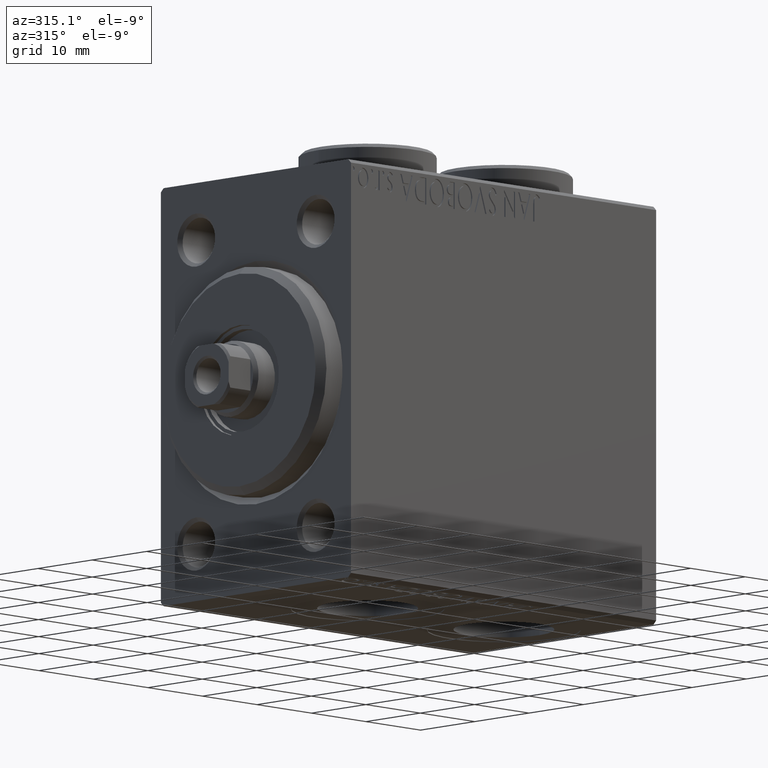
[diagram: clean part render]
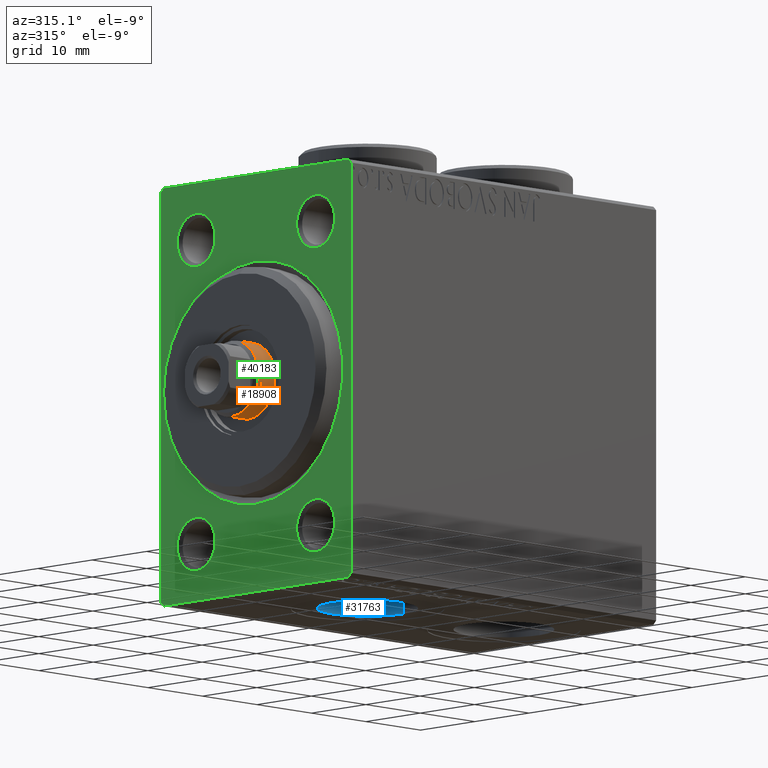
[diagram: same view with three faces highlighted in distinct colors, each labeled with its STEP entity id]
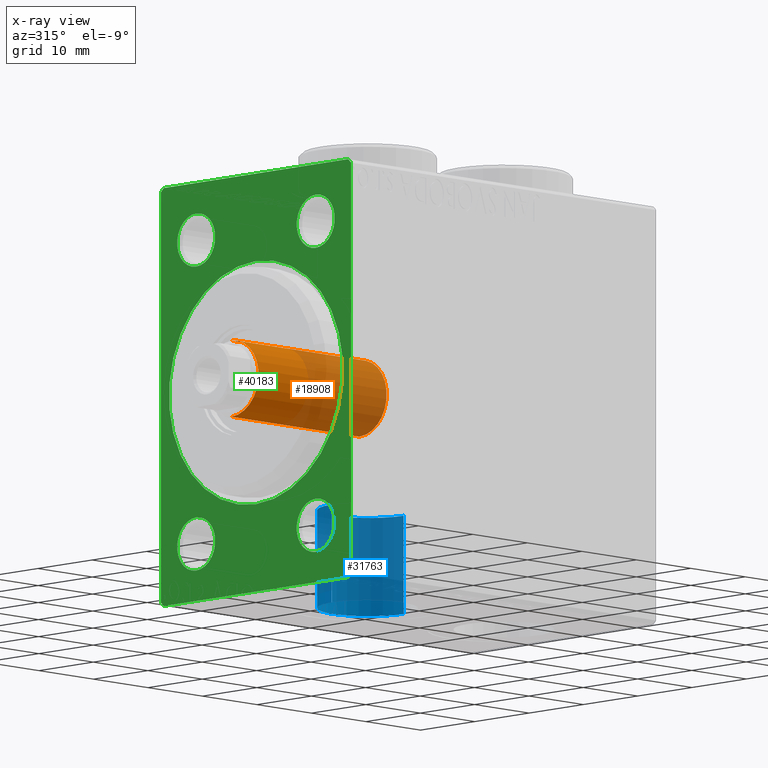
[diagram: x-ray of the same camera — body ghosted, the three highlighted faces saturated]
A machine part, auxiliary view with three faces highlighted in distinct colors.
The next image is the same camera in x-ray (body ghosted, the three faces saturated) — at least one of them is partly hidden behind the body in this view.
Their STEP definitions:

[orange] entity #18908 — the highlighted cylindrical surface (partial cylindrical patch) has radius 5 mm, axis along (1, -0, -0).
#320 = CARTESIAN_POINT ( 'NONE',  ( 5.000000000000000000, 6.123233995736766282E-16, 55.50000000000001421 ) ) ;
#1170 = LINE ( 'NONE', #35939, #11508 ) ;
#5799 = CARTESIAN_POINT ( 'NONE',  ( -5.000000000000000000, 0.000000000000000000, 55.50000000000001421 ) ) ;
#7449 = CIRCLE ( 'NONE', #37611, 5.000000000000000000 ) ;
#10186 = CARTESIAN_POINT ( 'NONE',  ( 5.000000000000000000, 6.123233995736766282E-16, 32.00000000000000000 ) ) ;
#10250 = EDGE_CURVE ( 'NONE', #10322, #29606, #23501, .T. ) ;
#10322 = VERTEX_POINT ( 'NONE', #5799 ) ;
#11472 = DIRECTION ( 'NONE',  ( 1.000000000000000000, 0.000000000000000000, 0.000000000000000000 ) ) ;
#11508 = VECTOR ( 'NONE', #43522, 1000.000000000000000 ) ;
#11942 = FACE_OUTER_BOUND ( 'NONE', #38227, .T. ) ;
#12079 = ORIENTED_EDGE ( 'NONE', *, *, #23225, .T. ) ;
#14481 = AXIS2_PLACEMENT_3D ( 'NONE', #39794, #42783, #36346 ) ;
#16577 = CARTESIAN_POINT ( 'NONE',  ( -5.000000000000000000, 0.000000000000000000, 56.00000000000000000 ) ) ;
#16834 = ORIENTED_EDGE ( 'NONE', *, *, #27546, .T. ) ;
#17992 = VECTOR ( 'NONE', #29719, 1000.000000000000000 ) ;
#18368 = CARTESIAN_POINT ( 'NONE',  ( 0.000000000000000000, 0.000000000000000000, 55.50000000000001421 ) ) ;
#18639 = EDGE_CURVE ( 'NONE', #28863, #20756, #1170, .T. ) ;
#18908 = ADVANCED_FACE ( 'NONE', ( #11942 ), #32419, .T. ) ;
#19283 = DIRECTION ( 'NONE',  ( 0.000000000000000000, 0.000000000000000000, -1.000000000000000000 ) ) ;
#20756 = VERTEX_POINT ( 'NONE', #10186 ) ;
#21022 = DIRECTION ( 'NONE',  ( 1.000000000000000000, 0.000000000000000000, 0.000000000000000000 ) ) ;
#22882 = ORIENTED_EDGE ( 'NONE', *, *, #18639, .F. ) ;
#23225 = EDGE_CURVE ( 'NONE', #29606, #20756, #23398, .T. ) ;
#23398 = CIRCLE ( 'NONE', #29265, 5.000000000000000000 ) ;
#23501 = LINE ( 'NONE', #16577, #17992 ) ;
#24804 = ORIENTED_EDGE ( 'NONE', *, *, #10250, .T. ) ;
#27546 = EDGE_CURVE ( 'NONE', #28863, #10322, #7449, .T. ) ;
#28822 = CARTESIAN_POINT ( 'NONE',  ( 0.000000000000000000, 0.000000000000000000, 32.00000000000000000 ) ) ;
#28863 = VERTEX_POINT ( 'NONE', #320 ) ;
#29265 = AXIS2_PLACEMENT_3D ( 'NONE', #28822, #35068, #21022 ) ;
#29606 = VERTEX_POINT ( 'NONE', #38810 ) ;
#29719 = DIRECTION ( 'NONE',  ( -0.000000000000000000, -0.000000000000000000, -1.000000000000000000 ) ) ;
#32419 = CYLINDRICAL_SURFACE ( 'NONE', #14481, 5.000000000000000000 ) ;
#35068 = DIRECTION ( 'NONE',  ( 0.000000000000000000, 0.000000000000000000, 1.000000000000000000 ) ) ;
#35939 = CARTESIAN_POINT ( 'NONE',  ( 5.000000000000000000, 6.123233995736766282E-16, 56.00000000000000000 ) ) ;
#36346 = DIRECTION ( 'NONE',  ( -1.000000000000000000, 0.000000000000000000, 0.000000000000000000 ) ) ;
#37611 = AXIS2_PLACEMENT_3D ( 'NONE', #18368, #19283, #11472 ) ;
#38227 = EDGE_LOOP ( 'NONE', ( #22882, #16834, #24804, #12079 ) ) ;
#38810 = CARTESIAN_POINT ( 'NONE',  ( -5.000000000000000000, 0.000000000000000000, 32.00000000000000000 ) ) ;
#39794 = CARTESIAN_POINT ( 'NONE',  ( 0.000000000000000000, 0.000000000000000000, 56.00000000000000000 ) ) ;
#42783 = DIRECTION ( 'NONE',  ( -0.000000000000000000, -0.000000000000000000, -1.000000000000000000 ) ) ;
#43522 = DIRECTION ( 'NONE',  ( -0.000000000000000000, -0.000000000000000000, -1.000000000000000000 ) ) ;

[blue] entity #31763 — the highlighted cylindrical surface (partial cylindrical patch) has radius 6.58 mm, axis along (-0, -0, -1).
#4763 = CIRCLE ( 'NONE', #20914, 6.580000000000002736 ) ;
#5015 = LINE ( 'NONE', #26832, #38591 ) ;
#5584 = CARTESIAN_POINT ( 'NONE',  ( 13.92000000000000171, -2.726986211408916281E-15, -14.50000000000000711 ) ) ;
#8056 = CARTESIAN_POINT ( 'NONE',  ( 20.50000000000000355, -2.726986211408916281E-15, -27.40000000000000924 ) ) ;
#11434 = DIRECTION ( 'NONE',  ( -1.000000000000000000, 0.000000000000000000, 0.000000000000000000 ) ) ;
#14436 = ORIENTED_EDGE ( 'NONE', *, *, #33131, .F. ) ;
#16512 = AXIS2_PLACEMENT_3D ( 'NONE', #17299, #42165, #35037 ) ;
#17299 = CARTESIAN_POINT ( 'NONE',  ( 20.50000000000000355, -2.726986211408916281E-15, -14.50000000000000711 ) ) ;
#19616 = DIRECTION ( 'NONE',  ( -0.000000000000000000, -0.000000000000000000, -1.000000000000000000 ) ) ;
#20190 = EDGE_CURVE ( 'NONE', #38452, #23069, #25515, .T. ) ;
#20914 = AXIS2_PLACEMENT_3D ( 'NONE', #8056, #31968, #42791 ) ;
#22242 = DIRECTION ( 'NONE',  ( 0.000000000000000000, 0.000000000000000000, -1.000000000000000000 ) ) ;
#22293 = ORIENTED_EDGE ( 'NONE', *, *, #44156, .T. ) ;
#22453 = CARTESIAN_POINT ( 'NONE',  ( 27.08000000000000540, -1.921168617569958028E-15, -14.50000000000000711 ) ) ;
#22522 = EDGE_LOOP ( 'NONE', ( #14436, #42754, #22293, #31760 ) ) ;
#23062 = LINE ( 'NONE', #5584, #44710 ) ;
#23069 = VERTEX_POINT ( 'NONE', #22453 ) ;
#24889 = CARTESIAN_POINT ( 'NONE',  ( 13.92000000000000171, -2.726986211408916281E-15, -14.50000000000000711 ) ) ;
#25448 = CARTESIAN_POINT ( 'NONE',  ( 20.50000000000000355, -2.726986211408916281E-15, -14.50000000000000711 ) ) ;
#25515 = CIRCLE ( 'NONE', #38020, 6.580000000000002736 ) ;
#25930 = DIRECTION ( 'NONE',  ( -0.000000000000000000, -0.000000000000000000, -1.000000000000000000 ) ) ;
#26832 = CARTESIAN_POINT ( 'NONE',  ( 27.08000000000000540, -1.921168617569958028E-15, -14.50000000000000711 ) ) ;
#27200 = CARTESIAN_POINT ( 'NONE',  ( 27.08000000000000540, -1.921168617569958028E-15, -27.40000000000000924 ) ) ;
#27223 = VERTEX_POINT ( 'NONE', #41403 ) ;
#31293 = EDGE_CURVE ( 'NONE', #27223, #36556, #4763, .T. ) ;
#31760 = ORIENTED_EDGE ( 'NONE', *, *, #31293, .T. ) ;
#31763 = ADVANCED_FACE ( 'NONE', ( #42636 ), #41713, .F. ) ;
#31968 = DIRECTION ( 'NONE',  ( 0.000000000000000000, 0.000000000000000000, -1.000000000000000000 ) ) ;
#33131 = EDGE_CURVE ( 'NONE', #23069, #36556, #5015, .T. ) ;
#35037 = DIRECTION ( 'NONE',  ( -1.000000000000000000, 0.000000000000000000, 0.000000000000000000 ) ) ;
#36556 = VERTEX_POINT ( 'NONE', #27200 ) ;
#38020 = AXIS2_PLACEMENT_3D ( 'NONE', #25448, #22242, #11434 ) ;
#38452 = VERTEX_POINT ( 'NONE', #24889 ) ;
#38591 = VECTOR ( 'NONE', #25930, 1000.000000000000000 ) ;
#41403 = CARTESIAN_POINT ( 'NONE',  ( 13.92000000000000171, -2.726986211408916281E-15, -27.40000000000000924 ) ) ;
#41713 = CYLINDRICAL_SURFACE ( 'NONE', #16512, 6.580000000000002736 ) ;
#42165 = DIRECTION ( 'NONE',  ( -0.000000000000000000, -0.000000000000000000, -1.000000000000000000 ) ) ;
#42636 = FACE_OUTER_BOUND ( 'NONE', #22522, .T. ) ;
#42754 = ORIENTED_EDGE ( 'NONE', *, *, #20190, .F. ) ;
#42791 = DIRECTION ( 'NONE',  ( -1.000000000000000000, 0.000000000000000000, 0.000000000000000000 ) ) ;
#44156 = EDGE_CURVE ( 'NONE', #38452, #27223, #23062, .T. ) ;
#44710 = VECTOR ( 'NONE', #19616, 1000.000000000000000 ) ;

[green] entity #40183 — the highlighted planar face has unit normal (1, 0, 0).
#311 = VERTEX_POINT ( 'NONE', #11211 ) ;
#482 = CARTESIAN_POINT ( 'NONE',  ( 0.000000000000000000, 16.99999999999998579, 27.49999999999999289 ) ) ;
#1022 = DIRECTION ( 'NONE',  ( 1.000000000000000000, 0.000000000000000000, 0.000000000000000000 ) ) ;
#1257 = CARTESIAN_POINT ( 'NONE',  ( 0.000000000000000000, 0.000000000000000000, 0.000000000000000000 ) ) ;
#1485 = CARTESIAN_POINT ( 'NONE',  ( 0.000000000000000000, 1.959434878635766709E-15, -16.00000000000001421 ) ) ;
#1491 = FACE_OUTER_BOUND ( 'NONE', #16126, .T. ) ;
#1806 = AXIS2_PLACEMENT_3D ( 'NONE', #26869, #36586, #34021 ) ;
#1899 = VERTEX_POINT ( 'NONE', #9876 ) ;
#1979 = VECTOR ( 'NONE', #15508, 1000.000000000000000 ) ;
#2208 = CARTESIAN_POINT ( 'NONE',  ( 0.000000000000000000, -11.00000000000000533, -23.50000000000000355 ) ) ;
#2376 = LINE ( 'NONE', #5172, #1979 ) ;
#2990 = LINE ( 'NONE', #14016, #40011 ) ;
#3061 = CARTESIAN_POINT ( 'NONE',  ( 0.000000000000000000, -17.49999999999999645, 26.99999999999997868 ) ) ;
#3207 = VERTEX_POINT ( 'NONE', #3311 ) ;
#3288 = DIRECTION ( 'NONE',  ( 0.000000000000000000, 0.000000000000000000, -1.000000000000000000 ) ) ;
#3311 = CARTESIAN_POINT ( 'NONE',  ( 0.000000000000000000, -11.00000000000000533, -16.49999999999999645 ) ) ;
#3519 = DIRECTION ( 'NONE',  ( 1.000000000000000000, 0.000000000000000000, 0.000000000000000000 ) ) ;
#3712 = LINE ( 'NONE', #482, #17476 ) ;
#3825 = CARTESIAN_POINT ( 'NONE',  ( 0.000000000000000000, 17.50000000000000711, -27.50000000000001066 ) ) ;
#4212 = EDGE_CURVE ( 'NONE', #19893, #13374, #6101, .T. ) ;
#4625 = DIRECTION ( 'NONE',  ( -0.000000000000000000, 0.7071067811865500152, -0.7071067811865451302 ) ) ;
#5172 = CARTESIAN_POINT ( 'NONE',  ( 0.000000000000000000, -17.49999999999999645, -27.50000000000000711 ) ) ;
#5357 = VERTEX_POINT ( 'NONE', #35355 ) ;
#5656 = ORIENTED_EDGE ( 'NONE', *, *, #15086, .T. ) ;
#5815 = ORIENTED_EDGE ( 'NONE', *, *, #45083, .T. ) ;
#6101 = CIRCLE ( 'NONE', #39169, 3.500000000000003109 ) ;
#6473 = CARTESIAN_POINT ( 'NONE',  ( 0.000000000000000000, -11.00000000000000533, 20.00000000000000711 ) ) ;
#6700 = DIRECTION ( 'NONE',  ( 0.000000000000000000, 0.000000000000000000, -1.000000000000000000 ) ) ;
#6765 = VERTEX_POINT ( 'NONE', #36178 ) ;
#6899 = DIRECTION ( 'NONE',  ( 0.000000000000000000, 0.000000000000000000, -1.000000000000000000 ) ) ;
#7589 = EDGE_CURVE ( 'NONE', #41174, #5357, #2990, .T. ) ;
#7683 = ORIENTED_EDGE ( 'NONE', *, *, #26983, .T. ) ;
#8510 = DIRECTION ( 'NONE',  ( 0.000000000000000000, 0.000000000000000000, -1.000000000000000000 ) ) ;
#8659 = ORIENTED_EDGE ( 'NONE', *, *, #36934, .F. ) ;
#8839 = DIRECTION ( 'NONE',  ( 0.000000000000000000, 0.000000000000000000, -1.000000000000000000 ) ) ;
#8928 = VERTEX_POINT ( 'NONE', #39513 ) ;
#9042 = ORIENTED_EDGE ( 'NONE', *, *, #4212, .T. ) ;
#9262 = CARTESIAN_POINT ( 'NONE',  ( 0.000000000000000000, 0.000000000000000000, 0.000000000000000000 ) ) ;
#9373 = VERTEX_POINT ( 'NONE', #1485 ) ;
#9385 = VERTEX_POINT ( 'NONE', #22426 ) ;
#9876 = CARTESIAN_POINT ( 'NONE',  ( 0.000000000000000000, 17.50000000000000000, 26.99999999999998224 ) ) ;
#9881 = CIRCLE ( 'NONE', #1806, 3.500000000000003109 ) ;
#10291 = CIRCLE ( 'NONE', #30850, 16.00000000000001421 ) ;
#10444 = EDGE_CURVE ( 'NONE', #8928, #311, #30531, .T. ) ;
#11143 = EDGE_CURVE ( 'NONE', #32867, #20003, #33455, .T. ) ;
#11211 = CARTESIAN_POINT ( 'NONE',  ( 0.000000000000000000, 11.00000000000000178, -23.50000000000000355 ) ) ;
#11214 = EDGE_LOOP ( 'NONE', ( #24859, #28130 ) ) ;
#11530 = VECTOR ( 'NONE', #14401, 1000.000000000000000 ) ;
#11893 = VECTOR ( 'NONE', #25613, 1000.000000000000114 ) ;
#12379 = DIRECTION ( 'NONE',  ( 0.000000000000000000, 0.000000000000000000, -1.000000000000000000 ) ) ;
#12814 = DIRECTION ( 'NONE',  ( 1.000000000000000000, 0.000000000000000000, 0.000000000000000000 ) ) ;
#12962 = CARTESIAN_POINT ( 'NONE',  ( 0.000000000000000000, 11.00000000000000178, 16.50000000000000355 ) ) ;
#13288 = CARTESIAN_POINT ( 'NONE',  ( 0.000000000000000000, -16.99999999999997513, -27.50000000000000711 ) ) ;
#13374 = VERTEX_POINT ( 'NONE', #12962 ) ;
#13422 = CARTESIAN_POINT ( 'NONE',  ( 0.000000000000000000, -17.49999999999999645, 26.99999999999997868 ) ) ;
#14016 = CARTESIAN_POINT ( 'NONE',  ( 0.000000000000000000, -17.49999999999999645, 27.49999999999998579 ) ) ;
#14037 = DIRECTION ( 'NONE',  ( 1.000000000000000000, 0.000000000000000000, 0.000000000000000000 ) ) ;
#14040 = EDGE_CURVE ( 'NONE', #29503, #28827, #2376, .T. ) ;
#14214 = EDGE_CURVE ( 'NONE', #9385, #28827, #17984, .T. ) ;
#14401 = DIRECTION ( 'NONE',  ( 0.000000000000000000, -1.261617073437677752E-16, 1.000000000000000000 ) ) ;
#15086 = EDGE_CURVE ( 'NONE', #13374, #19893, #33626, .T. ) ;
#15508 = DIRECTION ( 'NONE',  ( 0.000000000000000000, 1.000000000000000000, -9.912705577010325549E-17 ) ) ;
#15707 = LINE ( 'NONE', #25837, #22889 ) ;
#15857 = CARTESIAN_POINT ( 'NONE',  ( 0.000000000000000000, -11.00000000000000533, 23.50000000000001066 ) ) ;
#16126 = EDGE_LOOP ( 'NONE', ( #27673, #23163, #19185, #5815, #8659, #25489, #44765, #38676 ) ) ;
#16136 = CIRCLE ( 'NONE', #35958, 16.00000000000001421 ) ;
#16741 = CARTESIAN_POINT ( 'NONE',  ( 0.000000000000000000, -11.00000000000000533, 16.50000000000000355 ) ) ;
#16995 = ORIENTED_EDGE ( 'NONE', *, *, #39838, .T. ) ;
#17364 = VECTOR ( 'NONE', #28338, 1000.000000000000000 ) ;
#17476 = VECTOR ( 'NONE', #4625, 1000.000000000000114 ) ;
#17799 = CARTESIAN_POINT ( 'NONE',  ( 0.000000000000000000, 16.99999999999999289, -27.50000000000001066 ) ) ;
#17984 = LINE ( 'NONE', #25343, #17364 ) ;
#18048 = FACE_BOUND ( 'NONE', #25479, .T. ) ;
#18307 = CARTESIAN_POINT ( 'NONE',  ( 0.000000000000000000, 0.000000000000000000, 16.00000000000001421 ) ) ;
#19021 = VECTOR ( 'NONE', #45417, 1000.000000000000114 ) ;
#19185 = ORIENTED_EDGE ( 'NONE', *, *, #27882, .F. ) ;
#19483 = CARTESIAN_POINT ( 'NONE',  ( 0.000000000000000000, -16.99999999999998579, 27.49999999999998579 ) ) ;
#19603 = AXIS2_PLACEMENT_3D ( 'NONE', #33441, #39900, #8839 ) ;
#19631 = DIRECTION ( 'NONE',  ( 0.000000000000000000, -1.000000000000000000, -1.982541115402065356E-16 ) ) ;
#19893 = VERTEX_POINT ( 'NONE', #29650 ) ;
#20003 = VERTEX_POINT ( 'NONE', #16741 ) ;
#21095 = AXIS2_PLACEMENT_3D ( 'NONE', #41722, #3519, #3288 ) ;
#21510 = FACE_BOUND ( 'NONE', #32941, .T. ) ;
#22426 = CARTESIAN_POINT ( 'NONE',  ( 0.000000000000000000, 17.50000000000000711, -27.00000000000000355 ) ) ;
#22889 = VECTOR ( 'NONE', #19631, 1000.000000000000000 ) ;
#23003 = VERTEX_POINT ( 'NONE', #18307 ) ;
#23163 = ORIENTED_EDGE ( 'NONE', *, *, #42837, .T. ) ;
#23169 = AXIS2_PLACEMENT_3D ( 'NONE', #45125, #34988, #23714 ) ;
#23714 = DIRECTION ( 'NONE',  ( 0.000000000000000000, 0.000000000000000000, -1.000000000000000000 ) ) ;
#23737 = DIRECTION ( 'NONE',  ( 0.000000000000000000, 0.000000000000000000, -1.000000000000000000 ) ) ;
#23777 = LINE ( 'NONE', #3061, #19021 ) ;
#24690 = CARTESIAN_POINT ( 'NONE',  ( 0.000000000000000000, -16.99999999999997513, -27.50000000000000711 ) ) ;
#24709 = AXIS2_PLACEMENT_3D ( 'NONE', #26620, #32860, #12379 ) ;
#24859 = ORIENTED_EDGE ( 'NONE', *, *, #11143, .T. ) ;
#25125 = VERTEX_POINT ( 'NONE', #19483 ) ;
#25248 = ORIENTED_EDGE ( 'NONE', *, *, #37550, .T. ) ;
#25343 = CARTESIAN_POINT ( 'NONE',  ( 0.000000000000000000, 17.50000000000000711, -27.00000000000000355 ) ) ;
#25479 = EDGE_LOOP ( 'NONE', ( #16995, #34116 ) ) ;
#25489 = ORIENTED_EDGE ( 'NONE', *, *, #14214, .T. ) ;
#25613 = DIRECTION ( 'NONE',  ( -0.000000000000000000, -0.7071067811865474617, 0.7071067811865474617 ) ) ;
#25679 = LINE ( 'NONE', #3825, #11530 ) ;
#25752 = CARTESIAN_POINT ( 'NONE',  ( 0.000000000000000000, -11.00000000000000533, -20.00000000000000000 ) ) ;
#25837 = CARTESIAN_POINT ( 'NONE',  ( 0.000000000000000000, 17.50000000000000000, 27.49999999999999289 ) ) ;
#25969 = EDGE_CURVE ( 'NONE', #9373, #23003, #16136, .T. ) ;
#26620 = CARTESIAN_POINT ( 'NONE',  ( 0.000000000000000000, -11.00000000000000533, -20.00000000000000000 ) ) ;
#26869 = CARTESIAN_POINT ( 'NONE',  ( 0.000000000000000000, -11.00000000000000533, 20.00000000000000711 ) ) ;
#26983 = EDGE_CURVE ( 'NONE', #23003, #9373, #10291, .T. ) ;
#27423 = CARTESIAN_POINT ( 'NONE',  ( 0.000000000000000000, 11.00000000000000178, 20.00000000000000711 ) ) ;
#27673 = ORIENTED_EDGE ( 'NONE', *, *, #7589, .F. ) ;
#27758 = EDGE_CURVE ( 'NONE', #29503, #5357, #36223, .T. ) ;
#27769 = AXIS2_PLACEMENT_3D ( 'NONE', #25752, #39806, #8510 ) ;
#27882 = EDGE_CURVE ( 'NONE', #6765, #25125, #15707, .T. ) ;
#28130 = ORIENTED_EDGE ( 'NONE', *, *, #31457, .T. ) ;
#28151 = ORIENTED_EDGE ( 'NONE', *, *, #10444, .T. ) ;
#28338 = DIRECTION ( 'NONE',  ( 0.000000000000000000, -0.7071067811865524577, -0.7071067811865426878 ) ) ;
#28827 = VERTEX_POINT ( 'NONE', #17799 ) ;
#28854 = FACE_BOUND ( 'NONE', #38243, .T. ) ;
#29503 = VERTEX_POINT ( 'NONE', #13288 ) ;
#29624 = ORIENTED_EDGE ( 'NONE', *, *, #25969, .T. ) ;
#29650 = CARTESIAN_POINT ( 'NONE',  ( 0.000000000000000000, 11.00000000000000178, 23.50000000000001066 ) ) ;
#29989 = DIRECTION ( 'NONE',  ( 1.000000000000000000, 0.000000000000000000, 0.000000000000000000 ) ) ;
#30531 = CIRCLE ( 'NONE', #23169, 3.500000000000003109 ) ;
#30850 = AXIS2_PLACEMENT_3D ( 'NONE', #9262, #33890, #23737 ) ;
#31327 = CIRCLE ( 'NONE', #24709, 3.500000000000003109 ) ;
#31457 = EDGE_CURVE ( 'NONE', #20003, #32867, #9881, .T. ) ;
#32238 = EDGE_LOOP ( 'NONE', ( #7683, #29624 ) ) ;
#32327 = PLANE ( 'NONE',  #45434 ) ;
#32549 = FACE_BOUND ( 'NONE', #11214, .T. ) ;
#32860 = DIRECTION ( 'NONE',  ( 1.000000000000000000, 0.000000000000000000, 0.000000000000000000 ) ) ;
#32867 = VERTEX_POINT ( 'NONE', #15857 ) ;
#32941 = EDGE_LOOP ( 'NONE', ( #9042, #5656 ) ) ;
#33441 = CARTESIAN_POINT ( 'NONE',  ( 0.000000000000000000, 11.00000000000000178, -20.00000000000000000 ) ) ;
#33455 = CIRCLE ( 'NONE', #38603, 3.500000000000003109 ) ;
#33626 = CIRCLE ( 'NONE', #21095, 3.500000000000003109 ) ;
#33890 = DIRECTION ( 'NONE',  ( 1.000000000000000000, 0.000000000000000000, 0.000000000000000000 ) ) ;
#34021 = DIRECTION ( 'NONE',  ( 0.000000000000000000, 0.000000000000000000, -1.000000000000000000 ) ) ;
#34116 = ORIENTED_EDGE ( 'NONE', *, *, #35851, .T. ) ;
#34988 = DIRECTION ( 'NONE',  ( 1.000000000000000000, 0.000000000000000000, 0.000000000000000000 ) ) ;
#35355 = CARTESIAN_POINT ( 'NONE',  ( 0.000000000000000000, -17.49999999999999645, -26.99999999999998579 ) ) ;
#35783 = DIRECTION ( 'NONE',  ( 0.000000000000000000, 0.000000000000000000, -1.000000000000000000 ) ) ;
#35851 = EDGE_CURVE ( 'NONE', #39193, #3207, #31327, .T. ) ;
#35873 = CIRCLE ( 'NONE', #27769, 3.500000000000003109 ) ;
#35958 = AXIS2_PLACEMENT_3D ( 'NONE', #44345, #12814, #36993 ) ;
#36178 = CARTESIAN_POINT ( 'NONE',  ( 0.000000000000000000, 16.99999999999998579, 27.49999999999999289 ) ) ;
#36223 = LINE ( 'NONE', #24690, #11893 ) ;
#36586 = DIRECTION ( 'NONE',  ( 1.000000000000000000, 0.000000000000000000, 0.000000000000000000 ) ) ;
#36934 = EDGE_CURVE ( 'NONE', #9385, #1899, #25679, .T. ) ;
#36993 = DIRECTION ( 'NONE',  ( 0.000000000000000000, 0.000000000000000000, -1.000000000000000000 ) ) ;
#37550 = EDGE_CURVE ( 'NONE', #311, #8928, #44613, .T. ) ;
#38025 = DIRECTION ( 'NONE',  ( 0.000000000000000000, 0.000000000000000000, -1.000000000000000000 ) ) ;
#38243 = EDGE_LOOP ( 'NONE', ( #28151, #25248 ) ) ;
#38603 = AXIS2_PLACEMENT_3D ( 'NONE', #6473, #14037, #6700 ) ;
#38676 = ORIENTED_EDGE ( 'NONE', *, *, #27758, .T. ) ;
#39169 = AXIS2_PLACEMENT_3D ( 'NONE', #27423, #29989, #38025 ) ;
#39193 = VERTEX_POINT ( 'NONE', #2208 ) ;
#39513 = CARTESIAN_POINT ( 'NONE',  ( 0.000000000000000000, 11.00000000000000178, -16.49999999999999645 ) ) ;
#39806 = DIRECTION ( 'NONE',  ( 1.000000000000000000, 0.000000000000000000, 0.000000000000000000 ) ) ;
#39838 = EDGE_CURVE ( 'NONE', #3207, #39193, #35873, .T. ) ;
#39900 = DIRECTION ( 'NONE',  ( 1.000000000000000000, 0.000000000000000000, 0.000000000000000000 ) ) ;
#39923 = FACE_BOUND ( 'NONE', #32238, .T. ) ;
#40011 = VECTOR ( 'NONE', #6899, 1000.000000000000000 ) ;
#40183 = ADVANCED_FACE ( 'NONE', ( #39923, #18048, #32549, #21510, #28854, #1491 ), #32327, .F. ) ;
#41174 = VERTEX_POINT ( 'NONE', #13422 ) ;
#41722 = CARTESIAN_POINT ( 'NONE',  ( 0.000000000000000000, 11.00000000000000178, 20.00000000000000711 ) ) ;
#42837 = EDGE_CURVE ( 'NONE', #41174, #25125, #23777, .T. ) ;
#44345 = CARTESIAN_POINT ( 'NONE',  ( 0.000000000000000000, 0.000000000000000000, 0.000000000000000000 ) ) ;
#44613 = CIRCLE ( 'NONE', #19603, 3.500000000000003109 ) ;
#44765 = ORIENTED_EDGE ( 'NONE', *, *, #14040, .F. ) ;
#45083 = EDGE_CURVE ( 'NONE', #6765, #1899, #3712, .T. ) ;
#45125 = CARTESIAN_POINT ( 'NONE',  ( 0.000000000000000000, 11.00000000000000178, -20.00000000000000000 ) ) ;
#45417 = DIRECTION ( 'NONE',  ( -0.000000000000000000, 0.7071067811865474617, 0.7071067811865474617 ) ) ;
#45434 = AXIS2_PLACEMENT_3D ( 'NONE', #1257, #1022, #35783 ) ;